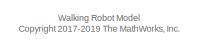
[diagram: root canvas - part 1/21, top left region]
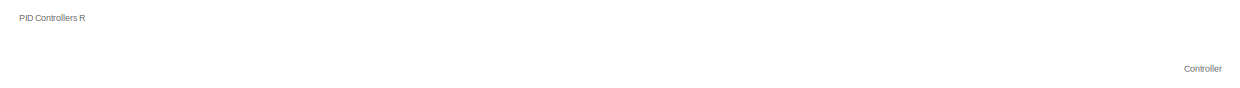
[diagram: root canvas - part 2/21, top center region]
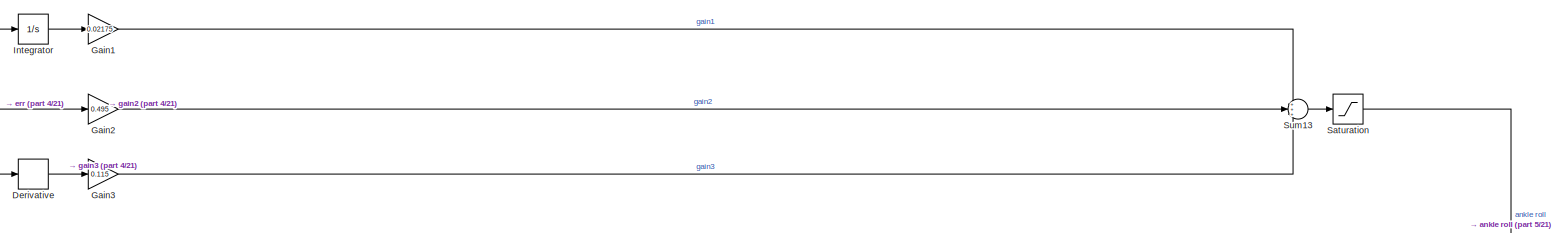
[diagram: root canvas - part 3/21, top center region]
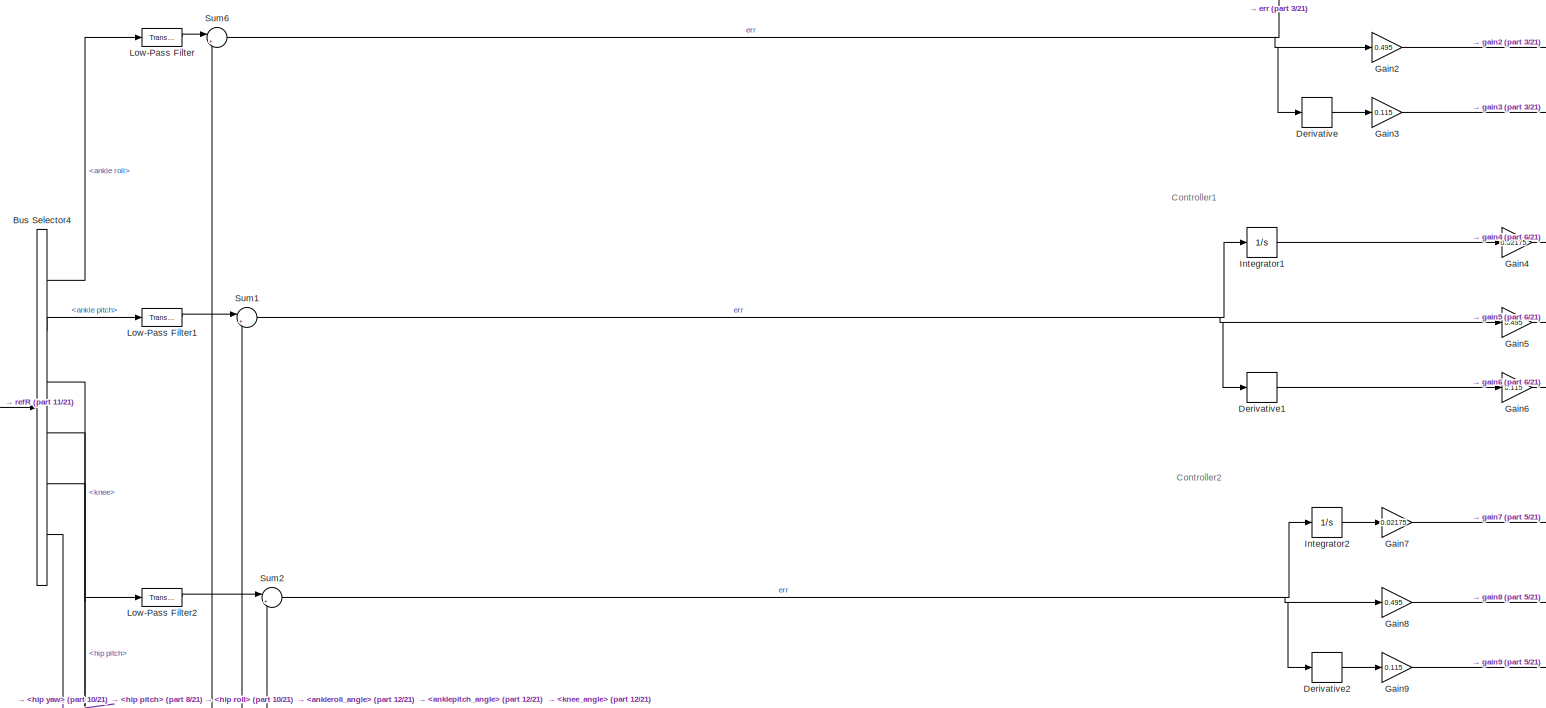
[diagram: root canvas - part 4/21, top center region]
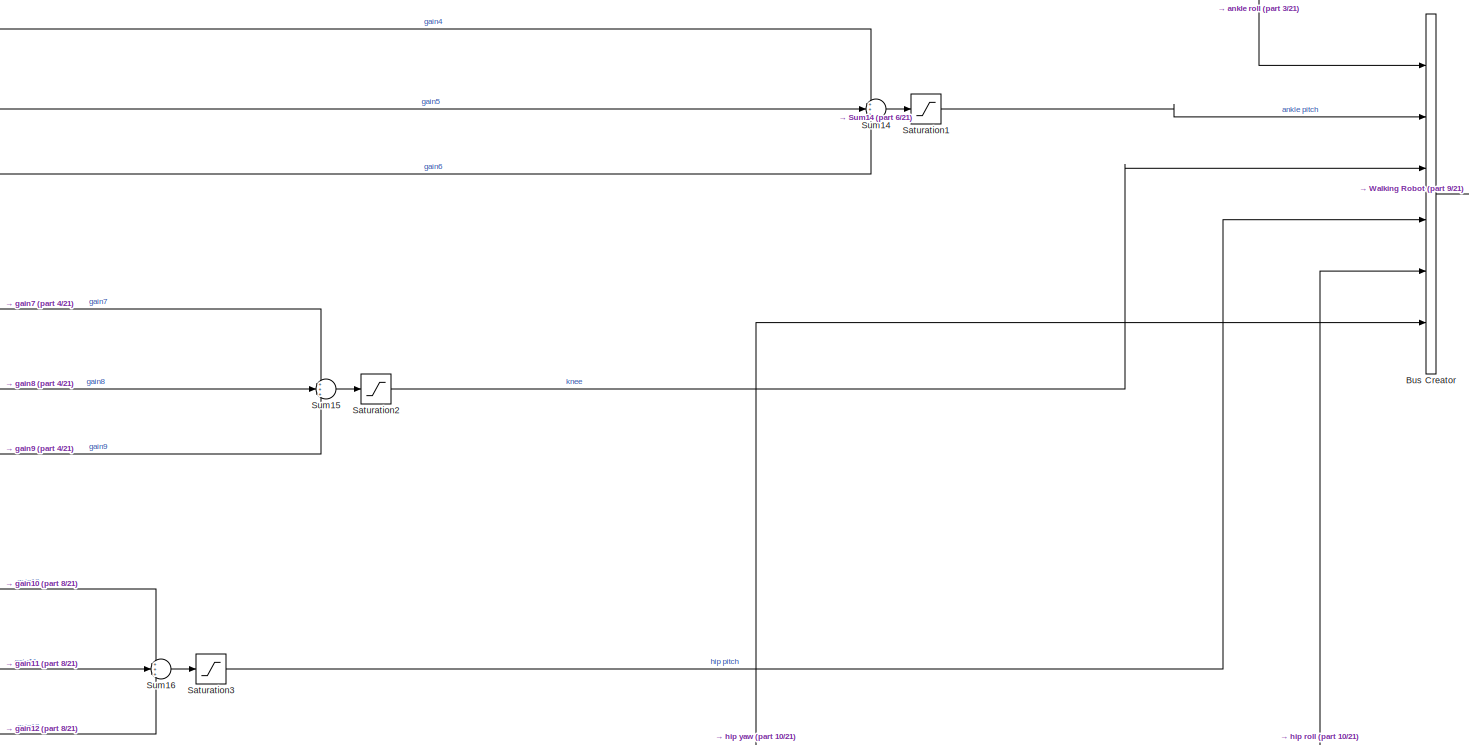
[diagram: root canvas - part 5/21, top center region]
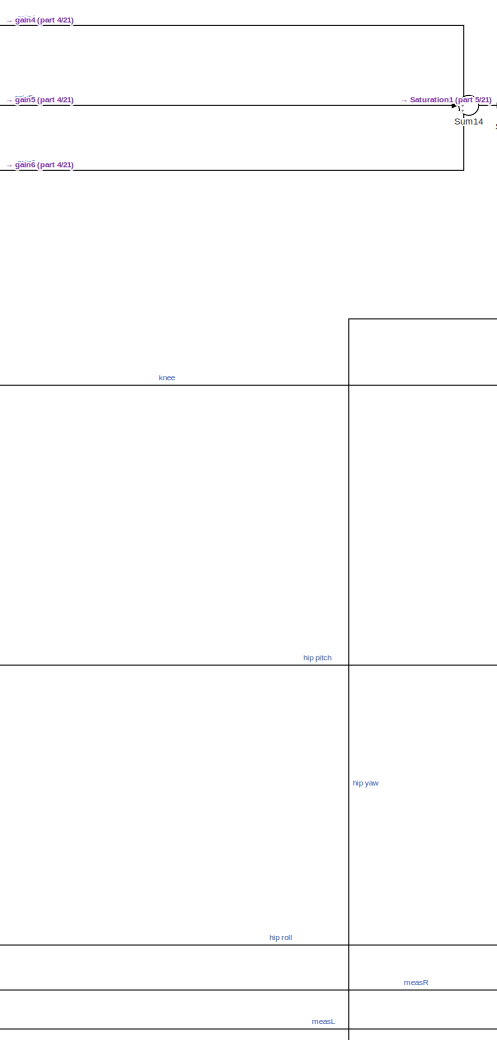
[diagram: root canvas - part 6/21, top center region]
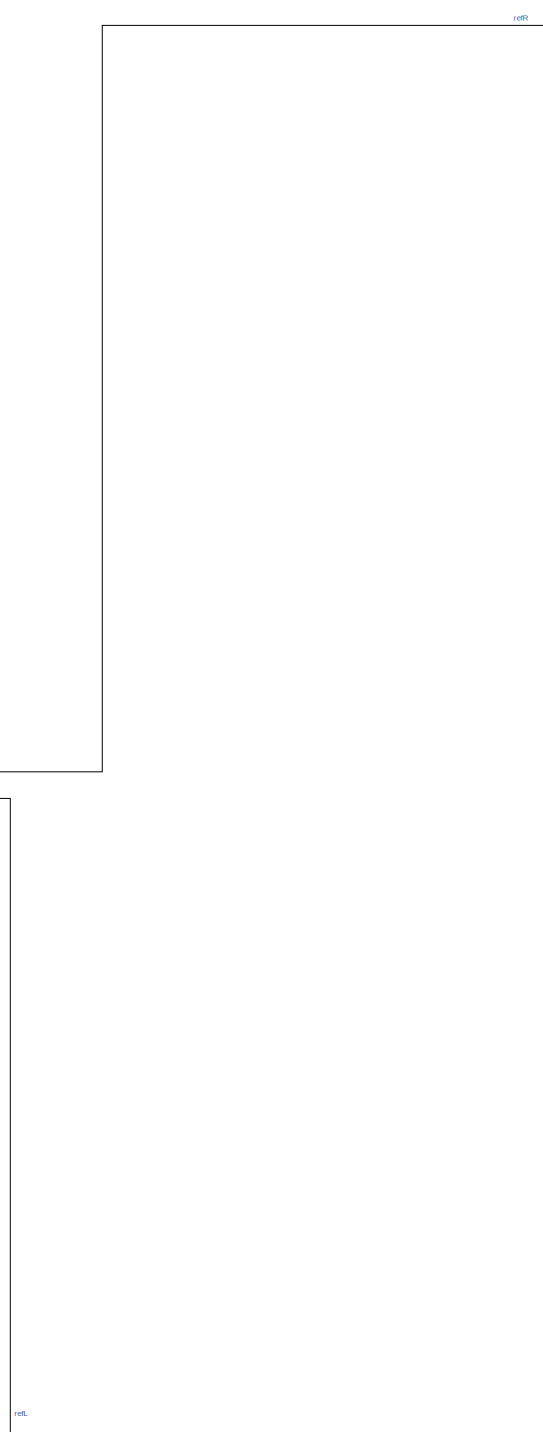
[diagram: root canvas - part 7/21, middle left region]
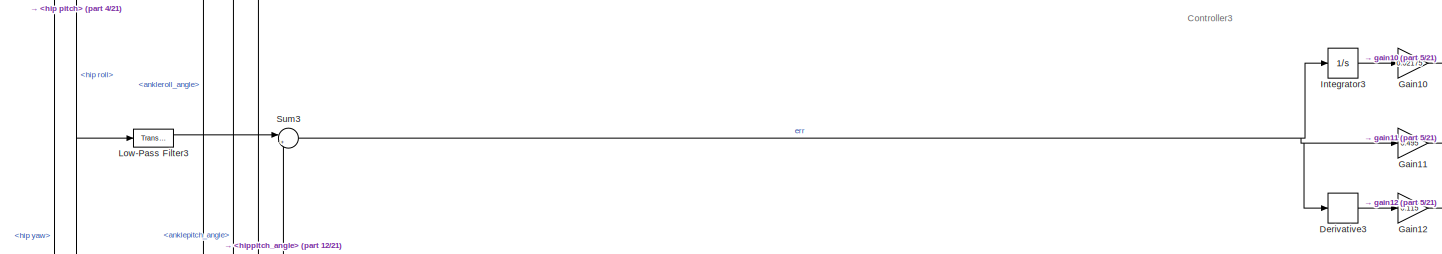
[diagram: root canvas - part 8/21, top center region]
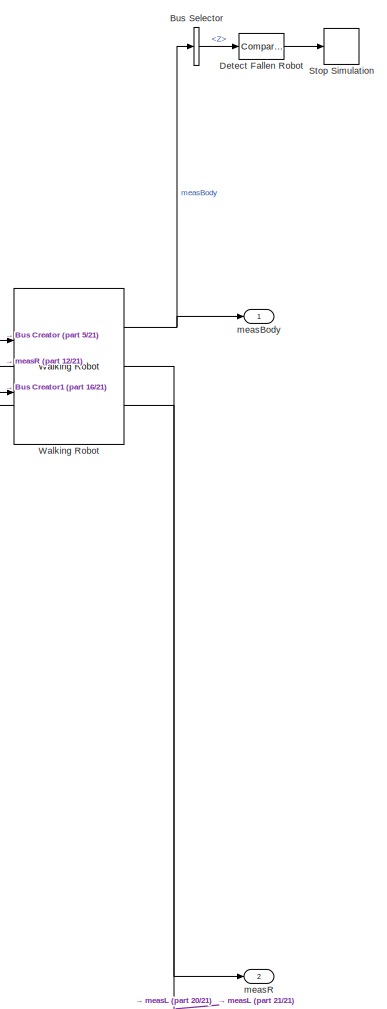
[diagram: root canvas - part 9/21, middle right region]
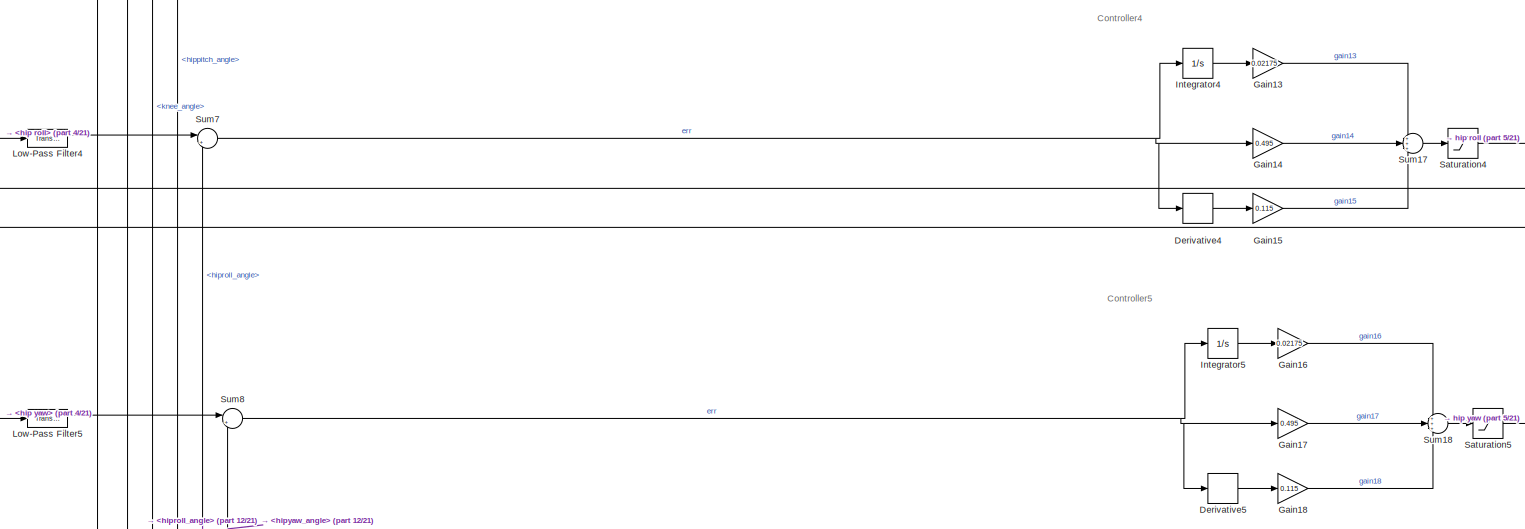
[diagram: root canvas - part 10/21, central region]
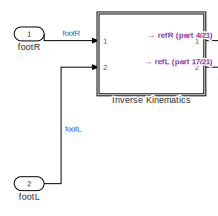
[diagram: root canvas - part 11/21, middle left region]
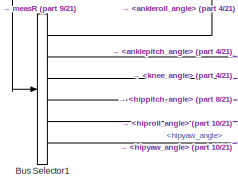
[diagram: root canvas - part 12/21, middle left region]
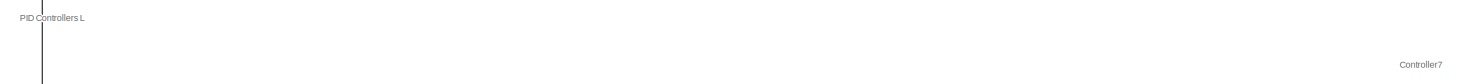
[diagram: root canvas - part 13/21, central region]
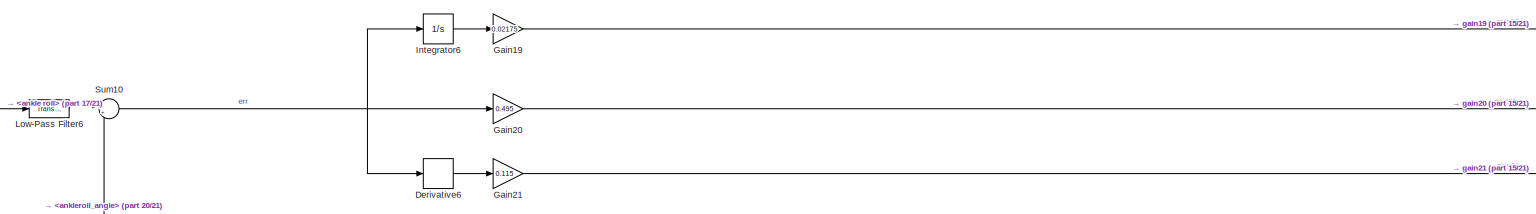
[diagram: root canvas - part 14/21, central region]
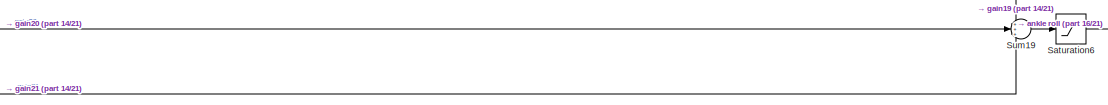
[diagram: root canvas - part 15/21, central region]
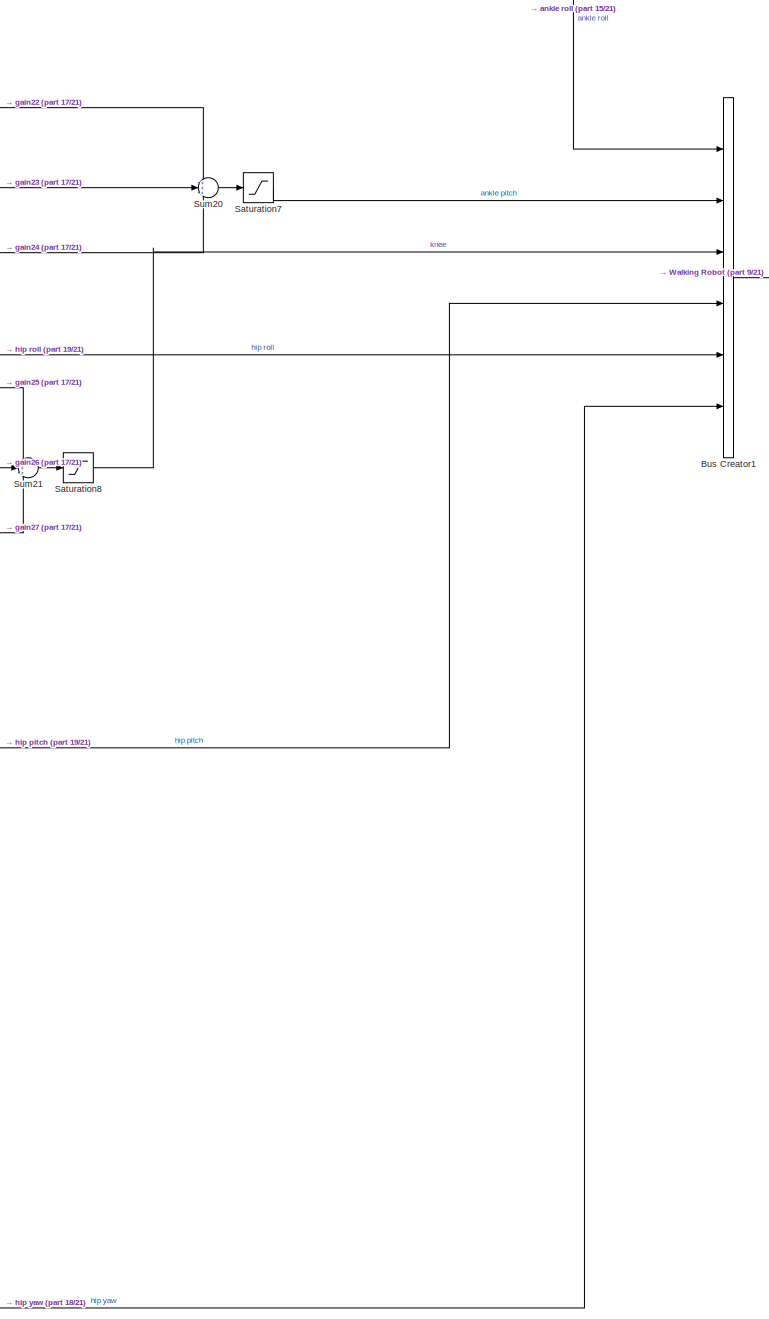
[diagram: root canvas - part 16/21, bottom center region]
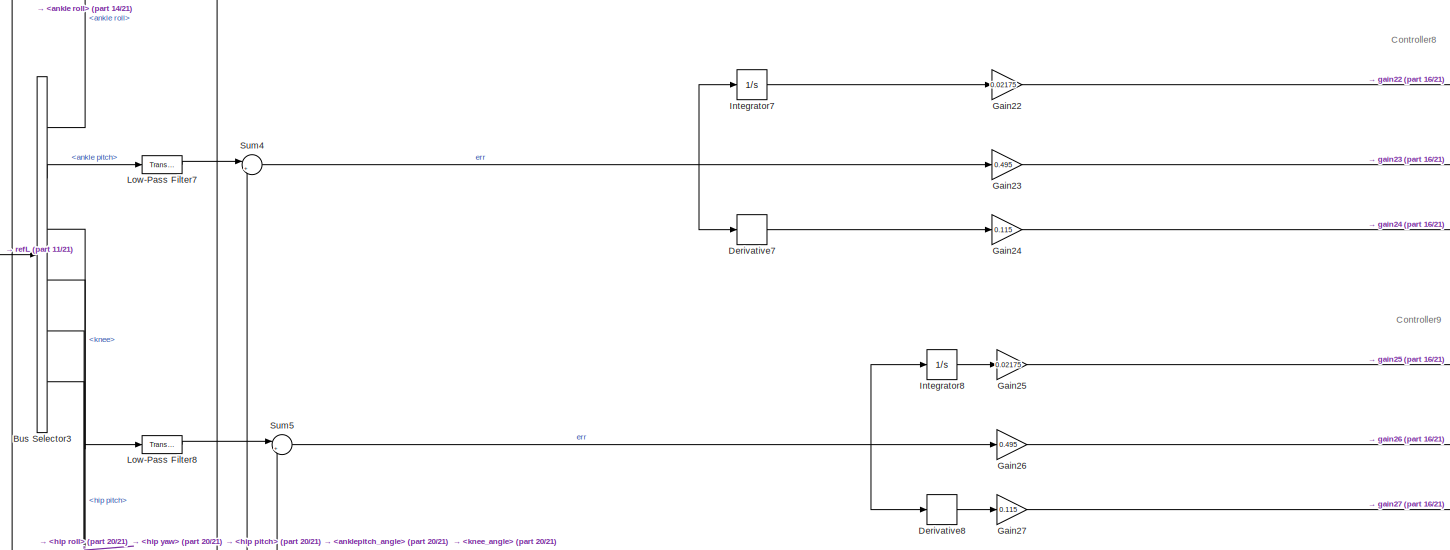
[diagram: root canvas - part 17/21, bottom center region]
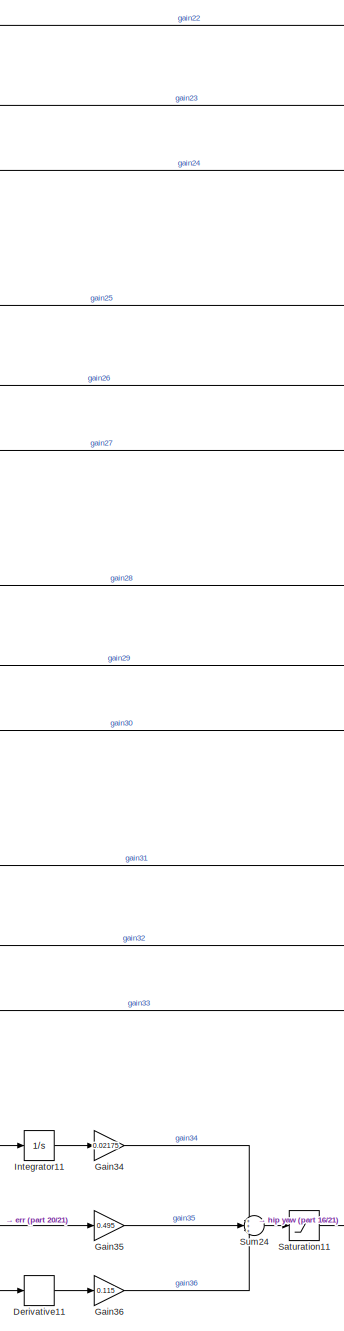
[diagram: root canvas - part 18/21, bottom center region]
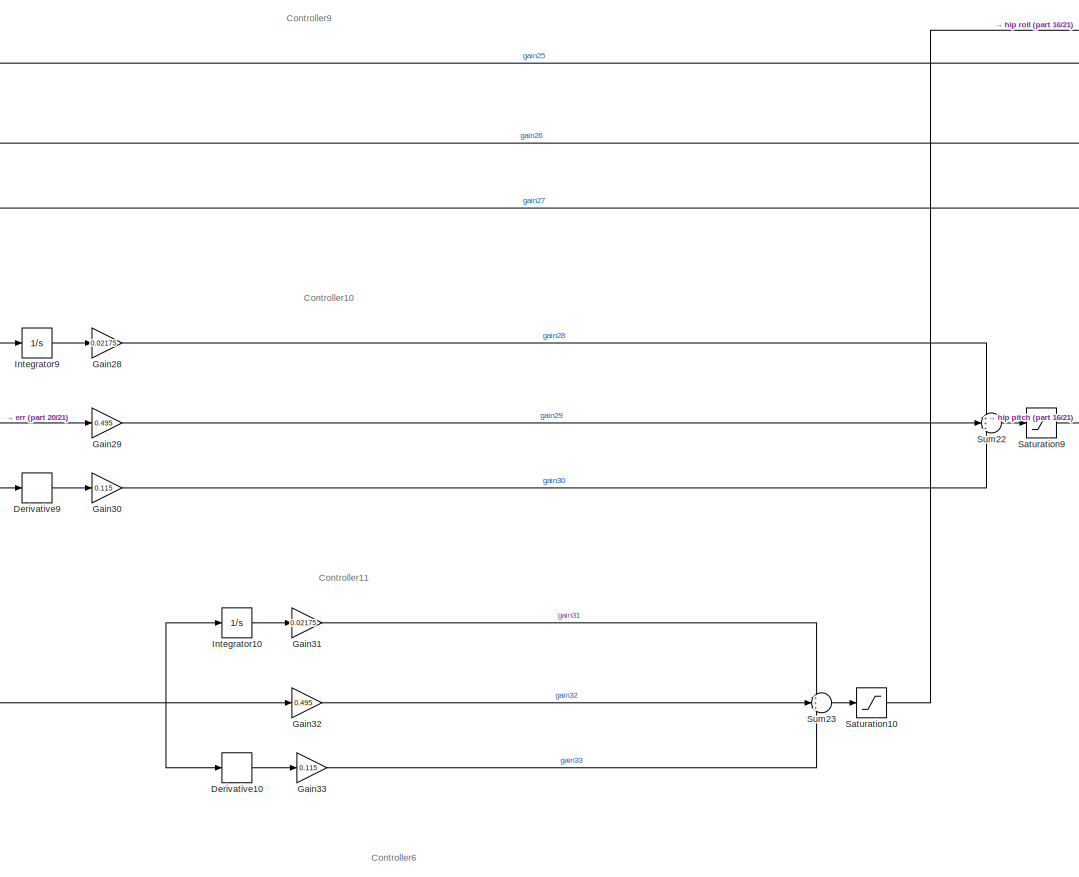
[diagram: root canvas - part 19/21, bottom center region]
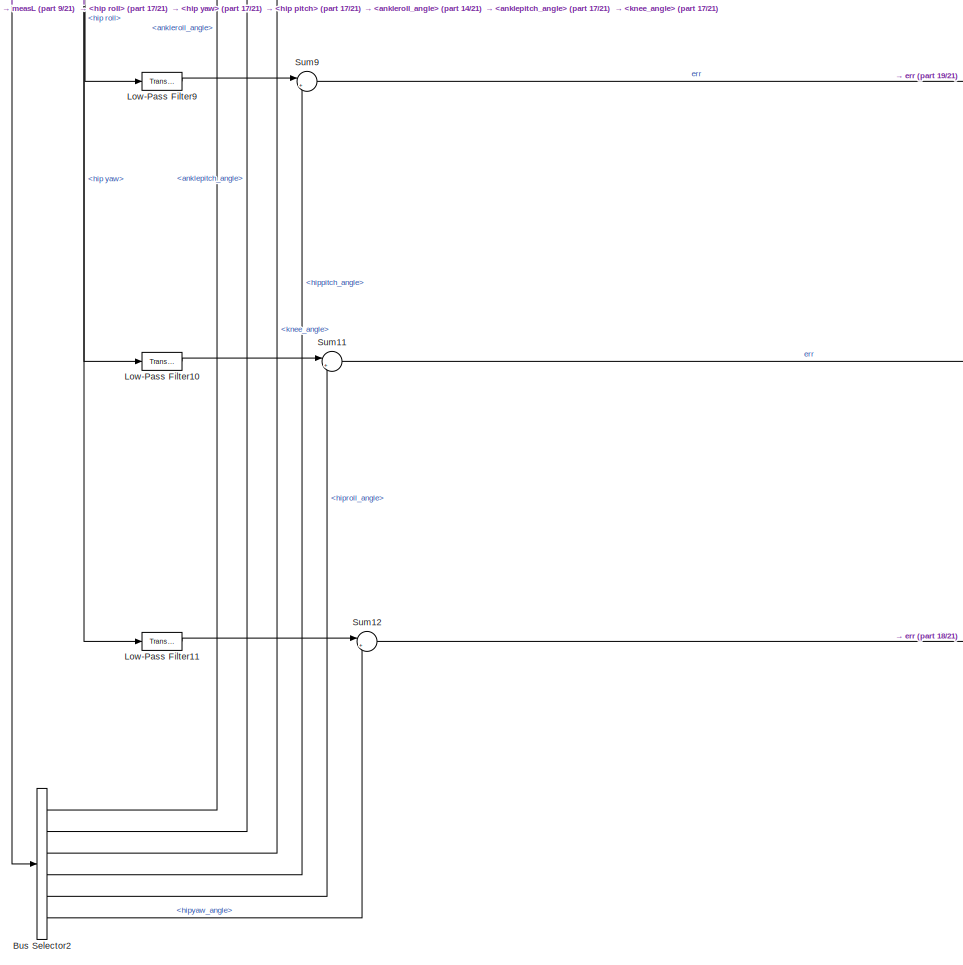
[diagram: root canvas - part 20/21, bottom left region]
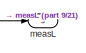
[diagram: root canvas - part 21/21, bottom right region]
MODEL slx_f11d145e6d68
KIND model
CONFIG AbsTol = auto
CONFIG EnableMultiTasking = off
CONFIG FixedStep = auto
CONFIG MaxStep = auto
CONFIG MinStep = auto
CONFIG PreLoadFcn = robotParameters\nload('defaultsimulationinputs.mat') 
CONFIG RelTol = 1e-3
CONFIG SampleTimeConstraint = Unconstrained
CONFIG Solver = VariableStepAuto
CONFIG SolverName = VariableStepAuto
CONFIG StartTime = 0.0
CONFIG StopTime = 10.0
BLOCK [BusCreator] Bus Creator
  DisplayOption = bar
  InheritFromInputs = on
  Inputs = 6
  Ports = [6, 1]
BLOCK [BusCreator] Bus Creator1
  DisplayOption = bar
  InheritFromInputs = on
  Inputs = 6
  Ports = [6, 1]
BLOCK [BusSelector] Bus Selector
  OutputSignals = Z
  Ports = [1, 1]
BLOCK [BusSelector] Bus Selector1
  OutputSignals = ankleroll_angle,anklepitch_angle,knee_angle,hippitch_angle,hiproll_angle,hipyaw_angle
  Ports = [1, 6]
BLOCK [BusSelector] Bus Selector2
  OutputSignals = ankleroll_angle,anklepitch_angle,knee_angle,hippitch_angle,hiproll_angle,hipyaw_angle
  Ports = [1, 6]
BLOCK [BusSelector] Bus Selector3
  OutputSignals = ankle roll,ankle pitch,knee,hip pitch,hip roll,hip yaw
  Ports = [1, 6]
BLOCK [BusSelector] Bus Selector4
  OutputSignals = ankle roll,ankle pitch,knee,hip pitch,hip roll,hip yaw
  Ports = [1, 6]
BLOCK [Derivative] Derivative
BLOCK [Derivative] Derivative1
BLOCK [Derivative] Derivative10
BLOCK [Derivative] Derivative11
BLOCK [Derivative] Derivative2
BLOCK [Derivative] Derivative3
BLOCK [Derivative] Derivative4
BLOCK [Derivative] Derivative5
BLOCK [Derivative] Derivative6
BLOCK [Derivative] Derivative7
BLOCK [Derivative] Derivative8
BLOCK [Derivative] Derivative9
BLOCK [Reference] Detect Fallen Robot  REF=simulink/Logic and Bit
Operations/Compare
To Constant
  Ports = [1, 1]
  SourceBlock = simulink/Logic and Bit\nOperations/Compare\nTo Constant
  SourceProductBaseCode = SL
  SourceType = Compare To Constant
BLOCK [Gain] Gain1
  Gain = 0.02175
BLOCK [Gain] Gain10
  Gain = 0.02175
BLOCK [Gain] Gain11
  Gain = 0.495
BLOCK [Gain] Gain12
  Gain = 0.115
BLOCK [Gain] Gain13
  Gain = 0.02175
BLOCK [Gain] Gain14
  Gain = 0.495
BLOCK [Gain] Gain15
  Gain = 0.115
BLOCK [Gain] Gain16
  Gain = 0.02175
BLOCK [Gain] Gain17
  Gain = 0.495
BLOCK [Gain] Gain18
  Gain = 0.115
BLOCK [Gain] Gain19
  Gain = 0.02175
BLOCK [Gain] Gain2
  Gain = 0.495
BLOCK [Gain] Gain20
  Gain = 0.495
BLOCK [Gain] Gain21
  Gain = 0.115
BLOCK [Gain] Gain22
  Gain = 0.02175
BLOCK [Gain] Gain23
  Gain = 0.495
BLOCK [Gain] Gain24
  Gain = 0.115
BLOCK [Gain] Gain25
  Gain = 0.02175
BLOCK [Gain] Gain26
  Gain = 0.495
BLOCK [Gain] Gain27
  Gain = 0.115
BLOCK [Gain] Gain28
  Gain = 0.02175
BLOCK [Gain] Gain29
  Gain = 0.495
BLOCK [Gain] Gain3
  Gain = 0.115
BLOCK [Gain] Gain30
  Gain = 0.115
BLOCK [Gain] Gain31
  Gain = 0.02175
BLOCK [Gain] Gain32
  Gain = 0.495
BLOCK [Gain] Gain33
  Gain = 0.115
BLOCK [Gain] Gain34
  Gain = 0.02175
BLOCK [Gain] Gain35
  Gain = 0.495
BLOCK [Gain] Gain36
  Gain = 0.115
BLOCK [Gain] Gain4
  Gain = 0.02175
BLOCK [Gain] Gain5
  Gain = 0.495
BLOCK [Gain] Gain6
  Gain = 0.115
BLOCK [Gain] Gain7
  Gain = 0.02175
BLOCK [Gain] Gain8
  Gain = 0.495
BLOCK [Gain] Gain9
  Gain = 0.115
BLOCK [Integrator] Integrator
  Ports = [1, 1]
BLOCK [Integrator] Integrator1
  Ports = [1, 1]
BLOCK [Integrator] Integrator10
  Ports = [1, 1]
BLOCK [Integrator] Integrator11
  Ports = [1, 1]
BLOCK [Integrator] Integrator2
  Ports = [1, 1]
BLOCK [Integrator] Integrator3
  Ports = [1, 1]
BLOCK [Integrator] Integrator4
  Ports = [1, 1]
BLOCK [Integrator] Integrator5
  Ports = [1, 1]
BLOCK [Integrator] Integrator6
  Ports = [1, 1]
BLOCK [Integrator] Integrator7
  Ports = [1, 1]
BLOCK [Integrator] Integrator8
  Ports = [1, 1]
BLOCK [Integrator] Integrator9
  Ports = [1, 1]
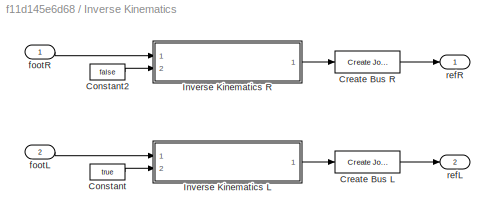
BLOCK [SubSystem] Inverse Kinematics
  Ports = [2, 2]
  RequestExecContextInheritance = off
BLOCK [Constant] Inverse Kinematics/Constant
  Value = true
BLOCK [Constant] Inverse Kinematics/Constant2
  Value = false
BLOCK [Reference] Inverse Kinematics/Create Bus L  REF=walkingRobotUtils/Create Joint Angle Bus
  Ports = [1, 1]
  SourceBlock = walkingRobotUtils/Create Joint Angle Bus
  SourceType = SubSystem
BLOCK [Reference] Inverse Kinematics/Create Bus R  REF=walkingRobotUtils/Create Joint Angle Bus
  Ports = [1, 1]
  SourceBlock = walkingRobotUtils/Create Joint Angle Bus
  SourceType = SubSystem
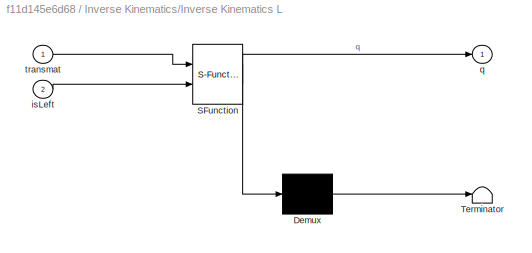
BLOCK [SubSystem] Inverse Kinematics/Inverse Kinematics L
  ErrorFcn = Stateflow.Translate.translate
  PermitHierarchicalResolution = ExplicitOnly
  Ports = [2, 1]
  RequestExecContextInheritance = off
  SFBlockType = MATLAB Function
  TreatAsAtomicUnit = on
BLOCK [Demux] Inverse Kinematics/Inverse Kinematics L/ Demux 
  Outputs = 1
  Ports = [1, 1]
BLOCK [S-Function] Inverse Kinematics/Inverse Kinematics L/ SFunction 
  EnableBusSupport = on
  FunctionName = sf_sfun
  PortCounts = [2 2]
  Ports = [2, 2]
  SFcnIsStateOwnerBlock = off
  SFunctionDeploymentMode = off
  Tag = Stateflow S-Function 1
BLOCK [Terminator] Inverse Kinematics/Inverse Kinematics L/ Terminator 
BLOCK [Inport] Inverse Kinematics/Inverse Kinematics L/isLeft
  Port = 2
BLOCK [Outport] Inverse Kinematics/Inverse Kinematics L/q
BLOCK [Inport] Inverse Kinematics/Inverse Kinematics L/transmat
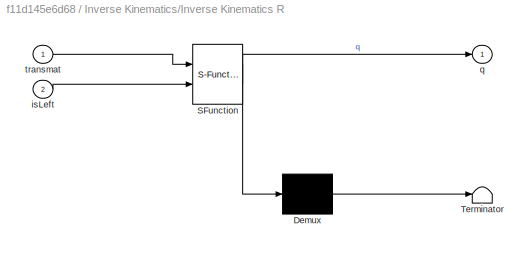
BLOCK [SubSystem] Inverse Kinematics/Inverse Kinematics R
  ErrorFcn = Stateflow.Translate.translate
  PermitHierarchicalResolution = ExplicitOnly
  Ports = [2, 1]
  RequestExecContextInheritance = off
  SFBlockType = MATLAB Function
  TreatAsAtomicUnit = on
BLOCK [Demux] Inverse Kinematics/Inverse Kinematics R/ Demux 
  Outputs = 1
  Ports = [1, 1]
BLOCK [S-Function] Inverse Kinematics/Inverse Kinematics R/ SFunction 
  EnableBusSupport = on
  FunctionName = sf_sfun
  PortCounts = [2 2]
  Ports = [2, 2]
  SFcnIsStateOwnerBlock = off
  SFunctionDeploymentMode = off
  Tag = Stateflow S-Function 2
BLOCK [Terminator] Inverse Kinematics/Inverse Kinematics R/ Terminator 
BLOCK [Inport] Inverse Kinematics/Inverse Kinematics R/isLeft
  Port = 2
BLOCK [Outport] Inverse Kinematics/Inverse Kinematics R/q
BLOCK [Inport] Inverse Kinematics/Inverse Kinematics R/transmat
BLOCK [Inport] Inverse Kinematics/footL
  Port = 2
BLOCK [Inport] Inverse Kinematics/footR
BLOCK [Outport] Inverse Kinematics/refL
  Port = 2
BLOCK [Outport] Inverse Kinematics/refR
BLOCK [Reference] Low-Pass Filter  REF=simulink_extras/Additional
Linear/Transfer Fcn
(with initial outputs)
  Ports = [1, 1]
  SourceBlock = simulink_extras/Additional\nLinear/Transfer Fcn\n(with initial outputs)
  SourceProductBaseCode = SL
  SourceType = Transfer Function with Initial Outputs
BLOCK [Reference] Low-Pass Filter1  REF=simulink_extras/Additional
Linear/Transfer Fcn
(with initial outputs)
  Ports = [1, 1]
  SourceBlock = simulink_extras/Additional\nLinear/Transfer Fcn\n(with initial outputs)
  SourceProductBaseCode = SL
  SourceType = Transfer Function with Initial Outputs
BLOCK [Reference] Low-Pass Filter10  REF=simulink_extras/Additional
Linear/Transfer Fcn
(with initial outputs)
  Ports = [1, 1]
  SourceBlock = simulink_extras/Additional\nLinear/Transfer Fcn\n(with initial outputs)
  SourceProductBaseCode = SL
  SourceType = Transfer Function with Initial Outputs
BLOCK [Reference] Low-Pass Filter11  REF=simulink_extras/Additional
Linear/Transfer Fcn
(with initial outputs)
  Ports = [1, 1]
  SourceBlock = simulink_extras/Additional\nLinear/Transfer Fcn\n(with initial outputs)
  SourceProductBaseCode = SL
  SourceType = Transfer Function with Initial Outputs
BLOCK [Reference] Low-Pass Filter2  REF=simulink_extras/Additional
Linear/Transfer Fcn
(with initial outputs)
  Ports = [1, 1]
  SourceBlock = simulink_extras/Additional\nLinear/Transfer Fcn\n(with initial outputs)
  SourceProductBaseCode = SL
  SourceType = Transfer Function with Initial Outputs
BLOCK [Reference] Low-Pass Filter3  REF=simulink_extras/Additional
Linear/Transfer Fcn
(with initial outputs)
  Ports = [1, 1]
  SourceBlock = simulink_extras/Additional\nLinear/Transfer Fcn\n(with initial outputs)
  SourceProductBaseCode = SL
  SourceType = Transfer Function with Initial Outputs
BLOCK [Reference] Low-Pass Filter4  REF=simulink_extras/Additional
Linear/Transfer Fcn
(with initial outputs)
  Ports = [1, 1]
  SourceBlock = simulink_extras/Additional\nLinear/Transfer Fcn\n(with initial outputs)
  SourceProductBaseCode = SL
  SourceType = Transfer Function with Initial Outputs
BLOCK [Reference] Low-Pass Filter5  REF=simulink_extras/Additional
Linear/Transfer Fcn
(with initial outputs)
  Ports = [1, 1]
  SourceBlock = simulink_extras/Additional\nLinear/Transfer Fcn\n(with initial outputs)
  SourceProductBaseCode = SL
  SourceType = Transfer Function with Initial Outputs
BLOCK [Reference] Low-Pass Filter6  REF=simulink_extras/Additional
Linear/Transfer Fcn
(with initial outputs)
  Ports = [1, 1]
  SourceBlock = simulink_extras/Additional\nLinear/Transfer Fcn\n(with initial outputs)
  SourceProductBaseCode = SL
  SourceType = Transfer Function with Initial Outputs
BLOCK [Reference] Low-Pass Filter7  REF=simulink_extras/Additional
Linear/Transfer Fcn
(with initial outputs)
  Ports = [1, 1]
  SourceBlock = simulink_extras/Additional\nLinear/Transfer Fcn\n(with initial outputs)
  SourceProductBaseCode = SL
  SourceType = Transfer Function with Initial Outputs
BLOCK [Reference] Low-Pass Filter8  REF=simulink_extras/Additional
Linear/Transfer Fcn
(with initial outputs)
  Ports = [1, 1]
  SourceBlock = simulink_extras/Additional\nLinear/Transfer Fcn\n(with initial outputs)
  SourceProductBaseCode = SL
  SourceType = Transfer Function with Initial Outputs
BLOCK [Reference] Low-Pass Filter9  REF=simulink_extras/Additional
Linear/Transfer Fcn
(with initial outputs)
  Ports = [1, 1]
  SourceBlock = simulink_extras/Additional\nLinear/Transfer Fcn\n(with initial outputs)
  SourceProductBaseCode = SL
  SourceType = Transfer Function with Initial Outputs
BLOCK [Saturate] Saturation
  LowerLimit = -15
  UpperLimit = 15
BLOCK [Saturate] Saturation1
  LowerLimit = -15
  UpperLimit = 15
BLOCK [Saturate] Saturation10
  LowerLimit = -15
  UpperLimit = 15
BLOCK [Saturate] Saturation11
  LowerLimit = -15
  UpperLimit = 15
BLOCK [Saturate] Saturation2
  LowerLimit = -15
  UpperLimit = 15
BLOCK [Saturate] Saturation3
  LowerLimit = -15
  UpperLimit = 15
BLOCK [Saturate] Saturation4
  LowerLimit = -15
  UpperLimit = 15
BLOCK [Saturate] Saturation5
  LowerLimit = -15
  UpperLimit = 15
BLOCK [Saturate] Saturation6
  LowerLimit = -15
  UpperLimit = 15
BLOCK [Saturate] Saturation7
  LowerLimit = -15
  UpperLimit = 15
BLOCK [Saturate] Saturation8
  LowerLimit = -15
  UpperLimit = 15
BLOCK [Saturate] Saturation9
  LowerLimit = -15
  UpperLimit = 15
BLOCK [Stop] Stop Simulation
BLOCK [Sum] Sum1
  Inputs = |+-
  Ports = [2, 1]
BLOCK [Sum] Sum10
  Inputs = |+-
  Ports = [2, 1]
BLOCK [Sum] Sum11
  Inputs = |+-
  Ports = [2, 1]
BLOCK [Sum] Sum12
  Inputs = |+-
  Ports = [2, 1]
BLOCK [Sum] Sum13
  Inputs = +++
  Ports = [3, 1]
BLOCK [Sum] Sum14
  Inputs = +++
  Ports = [3, 1]
BLOCK [Sum] Sum15
  Inputs = +++
  Ports = [3, 1]
BLOCK [Sum] Sum16
  Inputs = +++
  Ports = [3, 1]
BLOCK [Sum] Sum17
  Inputs = +++
  Ports = [3, 1]
BLOCK [Sum] Sum18
  Inputs = +++
  Ports = [3, 1]
BLOCK [Sum] Sum19
  Inputs = +++
  Ports = [3, 1]
BLOCK [Sum] Sum2
  Inputs = |+-
  Ports = [2, 1]
BLOCK [Sum] Sum20
  Inputs = +++
  Ports = [3, 1]
BLOCK [Sum] Sum21
  Inputs = +++
  Ports = [3, 1]
BLOCK [Sum] Sum22
  Inputs = +++
  Ports = [3, 1]
BLOCK [Sum] Sum23
  Inputs = +++
  Ports = [3, 1]
BLOCK [Sum] Sum24
  Inputs = +++
  Ports = [3, 1]
BLOCK [Sum] Sum3
  Inputs = |+-
  Ports = [2, 1]
BLOCK [Sum] Sum4
  Inputs = |+-
  Ports = [2, 1]
BLOCK [Sum] Sum5
  Inputs = |+-
  Ports = [2, 1]
BLOCK [Sum] Sum6
  Inputs = |+-
  Ports = [2, 1]
BLOCK [Sum] Sum7
  Inputs = |+-
  Ports = [2, 1]
BLOCK [Sum] Sum8
  Inputs = |+-
  Ports = [2, 1]
BLOCK [Sum] Sum9
  Inputs = |+-
  Ports = [2, 1]
BLOCK [Reference] Walking Robot  REF=walkingRobotUtils/Walking Robot
  Ports = [2, 3]
  SourceBlock = walkingRobotUtils/Walking Robot
  SourceType = SubSystem
BLOCK [Inport] footL
  Port = 2
BLOCK [Inport] footR
BLOCK [Outport] measBody
  VectorParamsAs1DForOutWhenUnconnected = off
BLOCK [Outport] measL
  Port = 3
  VectorParamsAs1DForOutWhenUnconnected = off
BLOCK [Outport] measR
  Port = 2
  VectorParamsAs1DForOutWhenUnconnected = off
ANNOTATION (root): Walking Robot Model <copyright redacted>
ANNOTATION (root): Controller
ANNOTATION (root): Controller1
ANNOTATION (root): Controller10
ANNOTATION (root): Controller11
ANNOTATION (root): Controller2
ANNOTATION (root): Controller3
ANNOTATION (root): Controller4
ANNOTATION (root): Controller5
ANNOTATION (root): Controller6
ANNOTATION (root): Controller7
ANNOTATION (root): Controller8
ANNOTATION (root): Controller9
ANNOTATION (root): PID Controllers L
ANNOTATION (root): PID Controllers R
LINE Bus Creator1:1 -> Walking Robot:2
LINE Bus Creator:1 -> Walking Robot:1
LINE Bus Selector1:1 -> Sum6:2
LINE Bus Selector1:2 -> Sum1:2
LINE Bus Selector1:3 -> Sum2:2
LINE Bus Selector1:4 -> Sum3:2
LINE Bus Selector1:5 -> Sum7:2
LINE Bus Selector1:6 -> Sum8:2
LINE Bus Selector2:1 -> Sum10:2
LINE Bus Selector2:2 -> Sum4:2
LINE Bus Selector2:3 -> Sum5:2
LINE Bus Selector2:4 -> Sum9:2
LINE Bus Selector2:5 -> Sum11:2
LINE Bus Selector2:6 -> Sum12:2
LINE Bus Selector3:1 -> Low-Pass Filter6:1
LINE Bus Selector3:2 -> Low-Pass Filter7:1
LINE Bus Selector3:3 -> Low-Pass Filter8:1
LINE Bus Selector3:4 -> Low-Pass Filter9:1
LINE Bus Selector3:5 -> Low-Pass Filter10:1
LINE Bus Selector3:6 -> Low-Pass Filter11:1
LINE Bus Selector4:1 -> Low-Pass Filter:1
LINE Bus Selector4:2 -> Low-Pass Filter1:1
LINE Bus Selector4:3 -> Low-Pass Filter2:1
LINE Bus Selector4:4 -> Low-Pass Filter3:1
LINE Bus Selector4:5 -> Low-Pass Filter4:1
LINE Bus Selector4:6 -> Low-Pass Filter5:1
LINE Bus Selector:1 -> Detect Fallen Robot:1
LINE Derivative10:1 -> Gain33:1
LINE Derivative11:1 -> Gain36:1
LINE Derivative1:1 -> Gain6:1
LINE Derivative2:1 -> Gain9:1
LINE Derivative3:1 -> Gain12:1
LINE Derivative4:1 -> Gain15:1
LINE Derivative5:1 -> Gain18:1
LINE Derivative6:1 -> Gain21:1
LINE Derivative7:1 -> Gain24:1
LINE Derivative8:1 -> Gain27:1
LINE Derivative9:1 -> Gain30:1
LINE Derivative:1 -> Gain3:1
LINE Detect Fallen Robot:1 -> Stop Simulation:1
LINE Gain10:1 -> Sum16:1
LINE Gain11:1 -> Sum16:2
LINE Gain12:1 -> Sum16:3
LINE Gain13:1 -> Sum17:1
LINE Gain14:1 -> Sum17:2
LINE Gain15:1 -> Sum17:3
LINE Gain16:1 -> Sum18:1
LINE Gain17:1 -> Sum18:2
LINE Gain18:1 -> Sum18:3
LINE Gain19:1 -> Sum19:1
LINE Gain1:1 -> Sum13:1
LINE Gain20:1 -> Sum19:2
LINE Gain21:1 -> Sum19:3
LINE Gain22:1 -> Sum20:1
LINE Gain23:1 -> Sum20:2
LINE Gain24:1 -> Sum20:3
LINE Gain25:1 -> Sum21:1
LINE Gain26:1 -> Sum21:2
LINE Gain27:1 -> Sum21:3
LINE Gain28:1 -> Sum22:1
LINE Gain29:1 -> Sum22:2
LINE Gain2:1 -> Sum13:2
LINE Gain30:1 -> Sum22:3
LINE Gain31:1 -> Sum23:1
LINE Gain32:1 -> Sum23:2
LINE Gain33:1 -> Sum23:3
LINE Gain34:1 -> Sum24:1
LINE Gain35:1 -> Sum24:2
LINE Gain36:1 -> Sum24:3
LINE Gain3:1 -> Sum13:3
LINE Gain4:1 -> Sum14:1
LINE Gain5:1 -> Sum14:2
LINE Gain6:1 -> Sum14:3
LINE Gain7:1 -> Sum15:1
LINE Gain8:1 -> Sum15:2
LINE Gain9:1 -> Sum15:3
LINE Integrator10:1 -> Gain31:1
LINE Integrator11:1 -> Gain34:1
LINE Integrator1:1 -> Gain4:1
LINE Integrator2:1 -> Gain7:1
LINE Integrator3:1 -> Gain10:1
LINE Integrator4:1 -> Gain13:1
LINE Integrator5:1 -> Gain16:1
LINE Integrator6:1 -> Gain19:1
LINE Integrator7:1 -> Gain22:1
LINE Integrator8:1 -> Gain25:1
LINE Integrator9:1 -> Gain28:1
LINE Integrator:1 -> Gain1:1
LINE Inverse Kinematics/Constant2:1 -> Inverse Kinematics/Inverse Kinematics R:2
LINE Inverse Kinematics/Constant:1 -> Inverse Kinematics/Inverse Kinematics L:2
LINE Inverse Kinematics/Create Bus L:1 -> Inverse Kinematics/refL:1
LINE Inverse Kinematics/Create Bus R:1 -> Inverse Kinematics/refR:1
LINE Inverse Kinematics/Inverse Kinematics L:1 -> Inverse Kinematics/Create Bus L:1
LINE Inverse Kinematics/Inverse Kinematics R:1 -> Inverse Kinematics/Create Bus R:1
LINE Inverse Kinematics/footL:1 -> Inverse Kinematics/Inverse Kinematics L:1
LINE Inverse Kinematics/footR:1 -> Inverse Kinematics/Inverse Kinematics R:1
LINE Inverse Kinematics:1 -> Bus Selector4:1
LINE Inverse Kinematics:2 -> Bus Selector3:1
LINE Low-Pass Filter10:1 -> Sum11:1
LINE Low-Pass Filter11:1 -> Sum12:1
LINE Low-Pass Filter1:1 -> Sum1:1
LINE Low-Pass Filter2:1 -> Sum2:1
LINE Low-Pass Filter3:1 -> Sum3:1
LINE Low-Pass Filter4:1 -> Sum7:1
LINE Low-Pass Filter5:1 -> Sum8:1
LINE Low-Pass Filter6:1 -> Sum10:1
LINE Low-Pass Filter7:1 -> Sum4:1
LINE Low-Pass Filter8:1 -> Sum5:1
LINE Low-Pass Filter9:1 -> Sum9:1
LINE Low-Pass Filter:1 -> Sum6:1
LINE Saturation10:1 -> Bus Creator1:5
LINE Saturation11:1 -> Bus Creator1:6
LINE Saturation1:1 -> Bus Creator:2
LINE Saturation2:1 -> Bus Creator:3
LINE Saturation3:1 -> Bus Creator:4
LINE Saturation4:1 -> Bus Creator:5
LINE Saturation5:1 -> Bus Creator:6
LINE Saturation6:1 -> Bus Creator1:1
LINE Saturation7:1 -> Bus Creator1:2
LINE Saturation8:1 -> Bus Creator1:3
LINE Saturation9:1 -> Bus Creator1:4
LINE Saturation:1 -> Bus Creator:1
NET Sum10:1 -> Derivative6:1, Gain20:1, Integrator6:1
NET Sum11:1 -> Derivative10:1, Gain32:1, Integrator10:1
NET Sum12:1 -> Derivative11:1, Gain35:1, Integrator11:1
LINE Sum13:1 -> Saturation:1
LINE Sum14:1 -> Saturation1:1
LINE Sum15:1 -> Saturation2:1
LINE Sum16:1 -> Saturation3:1
LINE Sum17:1 -> Saturation4:1
LINE Sum18:1 -> Saturation5:1
LINE Sum19:1 -> Saturation6:1
NET Sum1:1 -> Derivative1:1, Gain5:1, Integrator1:1
LINE Sum20:1 -> Saturation7:1
LINE Sum21:1 -> Saturation8:1
LINE Sum22:1 -> Saturation9:1
LINE Sum23:1 -> Saturation10:1
LINE Sum24:1 -> Saturation11:1
NET Sum2:1 -> Derivative2:1, Gain8:1, Integrator2:1
NET Sum3:1 -> Derivative3:1, Gain11:1, Integrator3:1
NET Sum4:1 -> Derivative7:1, Gain23:1, Integrator7:1
NET Sum5:1 -> Derivative8:1, Gain26:1, Integrator8:1
NET Sum6:1 -> Derivative:1, Gain2:1, Integrator:1
NET Sum7:1 -> Derivative4:1, Gain14:1, Integrator4:1
NET Sum8:1 -> Derivative5:1, Gain17:1, Integrator5:1
NET Sum9:1 -> Derivative9:1, Gain29:1, Integrator9:1
NET Walking Robot:1 -> Bus Selector:1, measBody:1
NET Walking Robot:2 -> Bus Selector1:1, measR:1
NET Walking Robot:3 -> Bus Selector2:1, measL:1
LINE footL:1 -> Inverse Kinematics:2
LINE footR:1 -> Inverse Kinematics:1
note: NET lines group one-source signal fan-out (src -> all destinations, sorted); 1:1 wires keep LINE
CHART Inverse Kinematics/Inverse Kinematics R states=1 transitions=1
  STATE_LABEL 'eML_blk_kernel()'
  STATE_LABEL 'SCRIPT:\nfunction q = inverseKinematics(transmat, isLeft)\nq = invKinBody2Foot(transmat, isLeft); \n\n'
CHART Inverse Kinematics/Inverse Kinematics L states=1 transitions=1
  STATE_LABEL 'eML_blk_kernel()'
  STATE_LABEL 'SCRIPT:\nfunction q = inverseKinematics(transmat, isLeft)\nq = invKinBody2Foot(transmat, isLeft); \n\n'
CHART  states=0 transitions=0
CHART  states=0 transitions=0
